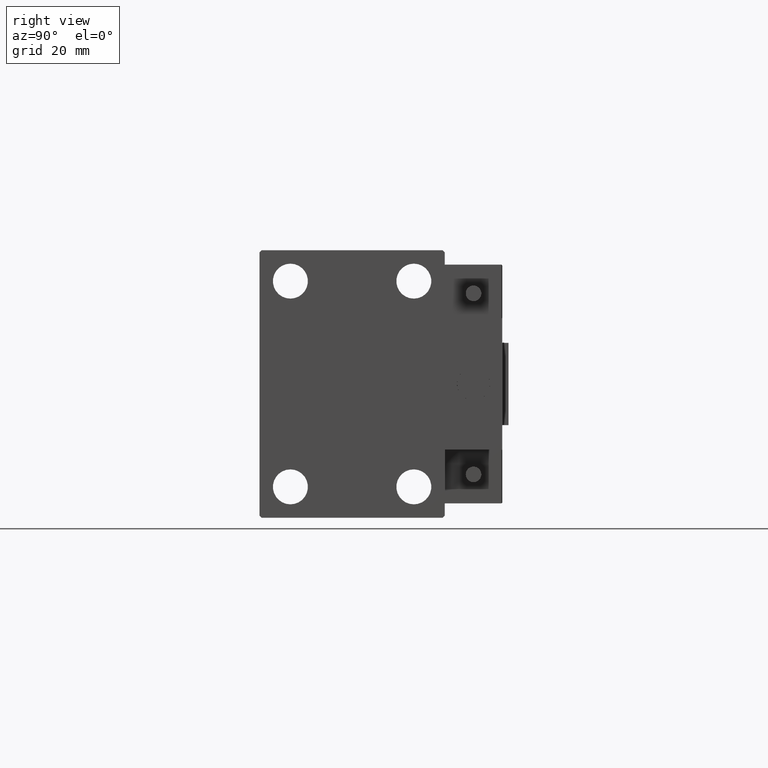
[diagram: clean part render]
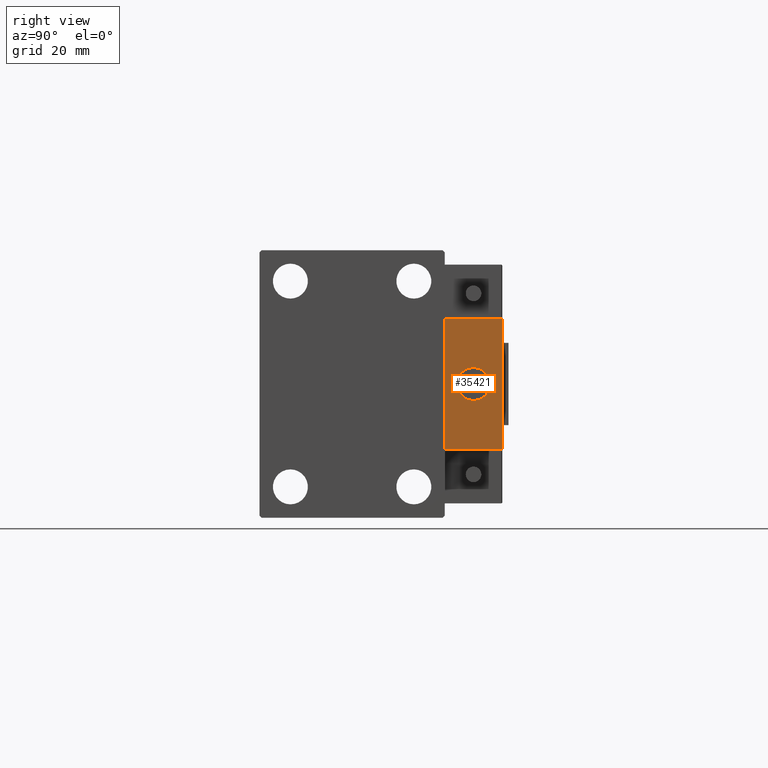
[diagram: same view with one face highlighted and labeled with its STEP entity id]
A machine part, right view. The second image highlights one B-rep face of the part: STEP entity #35421.
In plain terms, the highlighted planar face has unit normal (-1, 0, 0).
Its self-contained STEP definition (entity closure, byte-faithful):
#1631 = DIRECTION ( 'NONE',  ( 0.000000000000000000, 0.000000000000000000, 1.000000000000000000 ) ) ;
#2478 = DIRECTION ( 'NONE',  ( 0.000000000000000000, 0.000000000000000000, -1.000000000000000000 ) ) ;
#3282 = PLANE ( 'NONE',  #28796 ) ;
#3738 = VERTEX_POINT ( 'NONE', #31349 ) ;
#4326 = LINE ( 'NONE', #12524, #41648 ) ;
#4401 = ORIENTED_EDGE ( 'NONE', *, *, #8717, .T. ) ;
#4761 = VECTOR ( 'NONE', #25441, 1000.000000000000000 ) ;
#6197 = VERTEX_POINT ( 'NONE', #31368 ) ;
#8344 = EDGE_CURVE ( 'NONE', #47251, #6197, #16037, .T. ) ;
#8717 = EDGE_CURVE ( 'NONE', #3738, #12263, #13655, .T. ) ;
#9577 = EDGE_CURVE ( 'NONE', #12263, #6197, #4326, .T. ) ;
#9815 = CARTESIAN_POINT ( 'NONE',  ( 10.00000000000000000, 7.000000000000000000, 15.99999999999999289 ) ) ;
#10647 = VERTEX_POINT ( 'NONE', #43511 ) ;
#12126 = VECTOR ( 'NONE', #47343, 1000.000000000000000 ) ;
#12263 = VERTEX_POINT ( 'NONE', #25132 ) ;
#12524 = CARTESIAN_POINT ( 'NONE',  ( 10.00000000000000000, -7.000000000000000000, 15.99999999999999289 ) ) ;
#12824 = VERTEX_POINT ( 'NONE', #31706 ) ;
#13413 = DIRECTION ( 'NONE',  ( 0.000000000000000000, 0.000000000000000000, 1.000000000000000000 ) ) ;
#13655 = LINE ( 'NONE', #9815, #4761 ) ;
#13666 = DIRECTION ( 'NONE',  ( -1.000000000000000000, 0.000000000000000000, 0.000000000000000000 ) ) ;
#14725 = VECTOR ( 'NONE', #2478, 1000.000000000000000 ) ;
#15573 = FACE_BOUND ( 'NONE', #42884, .T. ) ;
#16037 = LINE ( 'NONE', #31684, #12126 ) ;
#17027 = ORIENTED_EDGE ( 'NONE', *, *, #38014, .T. ) ;
#21953 = ORIENTED_EDGE ( 'NONE', *, *, #30059, .F. ) ;
#25132 = CARTESIAN_POINT ( 'NONE',  ( 10.00000000000000000, -7.000000000000000000, 15.99999999999999289 ) ) ;
#25175 = AXIS2_PLACEMENT_3D ( 'NONE', #50435, #40875, #1631 ) ;
#25441 = DIRECTION ( 'NONE',  ( 0.000000000000000000, -1.000000000000000000, 0.000000000000000000 ) ) ;
#25847 = EDGE_CURVE ( 'NONE', #12824, #10647, #26831, .T. ) ;
#26831 = CIRCLE ( 'NONE', #25175, 4.000000000000000000 ) ;
#27608 = DIRECTION ( 'NONE',  ( -0.000000000000000000, 0.000000000000000000, 1.000000000000000000 ) ) ;
#28796 = AXIS2_PLACEMENT_3D ( 'NONE', #42522, #38667, #27608 ) ;
#29646 = LINE ( 'NONE', #38371, #14725 ) ;
#30059 = EDGE_CURVE ( 'NONE', #3738, #47251, #29646, .T. ) ;
#31349 = CARTESIAN_POINT ( 'NONE',  ( 10.00000000000000000, 7.000000000000000000, 15.99999999999999289 ) ) ;
#31368 = CARTESIAN_POINT ( 'NONE',  ( 10.00000000000000000, -7.000000000000000000, -16.00000000000000711 ) ) ;
#31684 = CARTESIAN_POINT ( 'NONE',  ( 10.00000000000000000, 7.000000000000000000, -16.00000000000000711 ) ) ;
#31706 = CARTESIAN_POINT ( 'NONE',  ( 10.00000000000000000, 0.000000000000000000, 4.000000000000000000 ) ) ;
#32841 = EDGE_LOOP ( 'NONE', ( #40477, #39088, #21953, #4401 ) ) ;
#35421 = ADVANCED_FACE ( 'NONE', ( #15573, #38418 ), #3282, .F. ) ;
#35639 = CARTESIAN_POINT ( 'NONE',  ( 10.00000000000000000, 7.000000000000000000, -16.00000000000000711 ) ) ;
#38014 = EDGE_CURVE ( 'NONE', #10647, #12824, #40384, .T. ) ;
#38371 = CARTESIAN_POINT ( 'NONE',  ( 10.00000000000000000, 7.000000000000000000, 15.99999999999999289 ) ) ;
#38418 = FACE_OUTER_BOUND ( 'NONE', #32841, .T. ) ;
#38667 = DIRECTION ( 'NONE',  ( -1.000000000000000000, 0.000000000000000000, -0.000000000000000000 ) ) ;
#39088 = ORIENTED_EDGE ( 'NONE', *, *, #8344, .F. ) ;
#40384 = CIRCLE ( 'NONE', #46937, 4.000000000000000000 ) ;
#40477 = ORIENTED_EDGE ( 'NONE', *, *, #9577, .T. ) ;
#40875 = DIRECTION ( 'NONE',  ( -1.000000000000000000, 0.000000000000000000, 0.000000000000000000 ) ) ;
#41648 = VECTOR ( 'NONE', #44330, 1000.000000000000000 ) ;
#42522 = CARTESIAN_POINT ( 'NONE',  ( 10.00000000000000000, 0.000000000000000000, 0.000000000000000000 ) ) ;
#42884 = EDGE_LOOP ( 'NONE', ( #44256, #17027 ) ) ;
#43511 = CARTESIAN_POINT ( 'NONE',  ( 10.00000000000000000, 4.898587196589412829E-16, -4.000000000000000000 ) ) ;
#44256 = ORIENTED_EDGE ( 'NONE', *, *, #25847, .T. ) ;
#44330 = DIRECTION ( 'NONE',  ( 0.000000000000000000, 0.000000000000000000, -1.000000000000000000 ) ) ;
#46937 = AXIS2_PLACEMENT_3D ( 'NONE', #49087, #13666, #13413 ) ;
#47251 = VERTEX_POINT ( 'NONE', #35639 ) ;
#47343 = DIRECTION ( 'NONE',  ( 0.000000000000000000, -1.000000000000000000, 0.000000000000000000 ) ) ;
#49087 = CARTESIAN_POINT ( 'NONE',  ( 10.00000000000000000, 0.000000000000000000, 0.000000000000000000 ) ) ;
#50435 = CARTESIAN_POINT ( 'NONE',  ( 10.00000000000000000, 0.000000000000000000, 0.000000000000000000 ) ) ;